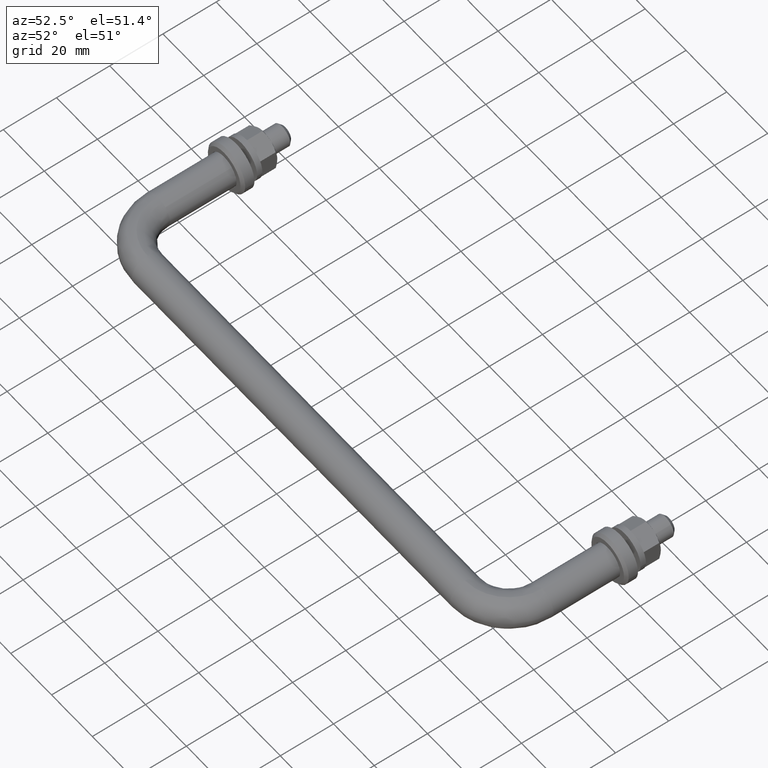
[diagram: clean part render]
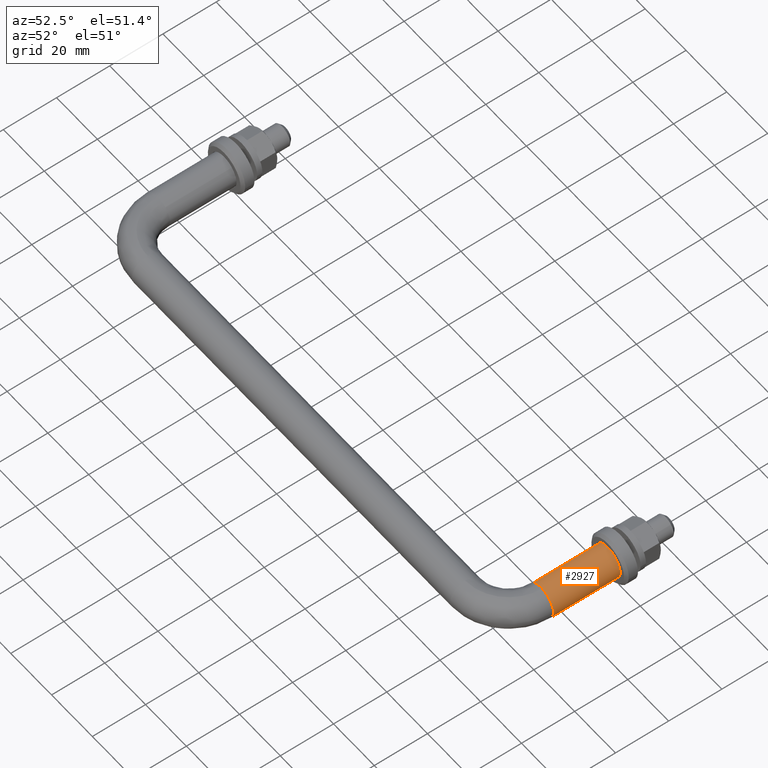
[diagram: same view with one face highlighted and labeled with its STEP entity id]
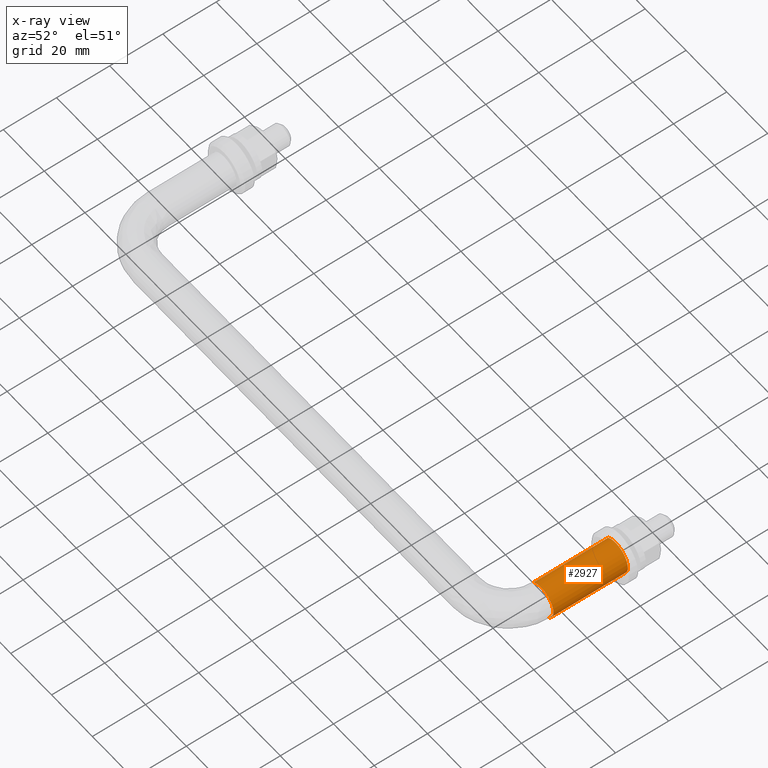
[diagram: x-ray of the same camera — body ghosted, the highlighted face saturated]
A machine part, auxiliary view. The second image highlights one B-rep face of the part: STEP entity #2927.
The next image is the same camera in x-ray: the body ghosted, the highlighted face saturated — about 0% of this face is hidden behind the body in this view.
In plain terms, the highlighted face is a freeform B-spline surface patch.
Its self-contained STEP definition (entity closure, byte-faithful):
#2736=CARTESIAN_POINT('',(191.735087819828210,-27.999986919513621,-4.695648941111090));
#2737=VERTEX_POINT('',#2736);
#2768=CARTESIAN_POINT('',(184.264912180171190,-28.0,4.695648941111987));
#2769=VERTEX_POINT('',#2768);
#2783=CARTESIAN_POINT('',(184.264912180171190,2.452205E-014,4.695648941112008));
#2784=VERTEX_POINT('',#2783);
#2785=CARTESIAN_POINT('',(184.264912180171190,-28.0,4.695648941111987));
#2786=CARTESIAN_POINT('',(184.264912180171190,2.452205E-014,4.695648941112008));
#2787=QUASI_UNIFORM_CURVE('',1,(#2785,#2786),.UNSPECIFIED.,.F.,.U.);
#2788=EDGE_CURVE('',#2769,#2784,#2787,.T.);
#2805=CARTESIAN_POINT('',(191.735087819828810,2.485512E-014,-4.695648941112017));
#2806=VERTEX_POINT('',#2805);
#2822=CARTESIAN_POINT('',(191.735087819828210,-27.999986919513621,-4.695648941111090));
#2823=CARTESIAN_POINT('',(191.735087819828810,2.485512E-014,-4.695648941112017));
#2824=QUASI_UNIFORM_CURVE('',1,(#2822,#2823),.UNSPECIFIED.,.F.,.U.);
#2825=EDGE_CURVE('',#2737,#2806,#2824,.T.);
#2830=CARTESIAN_POINT('',(184.264912180174290,-28.700000001172810,4.695648941114484));
#2831=CARTESIAN_POINT('',(188.960561121288800,-28.700000001172814,8.430736760940201));
#2832=CARTESIAN_POINT('',(192.695648941114510,-28.700000001172810,3.735087819825715));
#2833=CARTESIAN_POINT('',(196.430736760940250,-28.700000001172814,-0.960561121288768));
#2834=CARTESIAN_POINT('',(191.735087819825710,-28.700000001172810,-4.695648941114484));
#2835=CARTESIAN_POINT('',(184.264912180174290,0.717500000029346,4.695648941114484));
#2836=CARTESIAN_POINT('',(188.960561121288800,0.717500000029346,8.430736760940201));
#2837=CARTESIAN_POINT('',(192.695648941114510,0.717500000029347,3.735087819825715));
#2838=CARTESIAN_POINT('',(196.430736760940250,0.717500000029347,-0.960561121288768));
#2839=CARTESIAN_POINT('',(191.735087819825710,0.717500000029347,-4.695648941114484));
#2847=(BOUNDED_SURFACE()B_SPLINE_SURFACE(2,1,((#2830,#2835),(#2831,#2836),(#2832,#2837),(#2833,#2838),(#2834,#2839)),.UNSPECIFIED.,.F.,.F.,.U.)B_SPLINE_SURFACE_WITH_KNOTS((3,2,3),(2,2),(0.0,9.941125496954339,19.882250993908681),(0.0,29.417500001202161),.UNSPECIFIED.)GEOMETRIC_REPRESENTATION_ITEM()RATIONAL_B_SPLINE_SURFACE(((1.0,1.0),(0.707106781186548,0.707106781186548),(1.0,1.0),(0.707106781186548,0.707106781186548),(1.0,1.0)))REPRESENTATION_ITEM('')SURFACE());
#2848=CARTESIAN_POINT('',(194.0,-28.0,0.0));
#2849=VERTEX_POINT('',#2848);
#2850=CARTESIAN_POINT('',(191.735087819828180,-27.999986919513624,-4.695648941111090));
#2851=CARTESIAN_POINT('',(193.999999999999970,-27.999994583691187,-2.894056444900413));
#2852=CARTESIAN_POINT('',(194.0,-28.0,0.0));
#2860=(BOUNDED_CURVE()B_SPLINE_CURVE(2,(#2850,#2851,#2852),.UNSPECIFIED.,.F.,.U.)B_SPLINE_CURVE_WITH_KNOTS((3,3),(0.357863877391600,0.500000000000000),.UNSPECIFIED.)CURVE()GEOMETRIC_REPRESENTATION_ITEM()RATIONAL_B_SPLINE_CURVE((0.856305618644021,0.833477174158249,1.0))REPRESENTATION_ITEM(''));
#2861=EDGE_CURVE('',#2737,#2849,#2860,.T.);
#2862=ORIENTED_EDGE('',*,*,#2861,.F.);
#2863=ORIENTED_EDGE('',*,*,#2825,.T.);
#2864=CARTESIAN_POINT('',(194.0,2.428613E-014,0.0));
#2865=VERTEX_POINT('',#2864);
#2866=CARTESIAN_POINT('',(191.735087819828750,2.485512E-014,-4.695648941112017));
#2867=CARTESIAN_POINT('',(194.000000000000030,2.428613E-014,-2.894056444900539));
#2868=CARTESIAN_POINT('',(194.0,2.428613E-014,0.0));
#2876=(BOUNDED_CURVE()B_SPLINE_CURVE(2,(#2866,#2867,#2868),.UNSPECIFIED.,.F.,.U.)B_SPLINE_CURVE_WITH_KNOTS((3,3),(0.357863877391645,0.500000000000000),.UNSPECIFIED.)CURVE()GEOMETRIC_REPRESENTATION_ITEM()RATIONAL_B_SPLINE_CURVE((0.856305618644006,0.833477174158302,1.0))REPRESENTATION_ITEM(''));
#2877=EDGE_CURVE('',#2806,#2865,#2876,.T.);
#2878=ORIENTED_EDGE('',*,*,#2877,.T.);
#2879=CARTESIAN_POINT('',(194.0,2.428613E-014,0.0));
#2880=CARTESIAN_POINT('',(193.999999999999940,2.428613E-014,6.0));
#2881=CARTESIAN_POINT('',(188.0,2.428613E-014,6.0));
#2882=CARTESIAN_POINT('',(185.904706199466230,2.428613E-014,6.0));
#2883=CARTESIAN_POINT('',(184.264912180171190,2.452205E-014,4.695648941112008));
#2891=(BOUNDED_CURVE()B_SPLINE_CURVE(2,(#2879,#2880,#2881,#2882,#2883),.UNSPECIFIED.,.F.,.U.)B_SPLINE_CURVE_WITH_KNOTS((3,2,3),(0.500000000000000,0.750000000000000,0.857863877391646),.UNSPECIFIED.)CURVE()GEOMETRIC_REPRESENTATION_ITEM()RATIONAL_B_SPLINE_CURVE((1.0,0.707106781186548,1.0,0.873629607028244,0.856305618644006))REPRESENTATION_ITEM(''));
#2892=EDGE_CURVE('',#2865,#2784,#2891,.T.);
#2893=ORIENTED_EDGE('',*,*,#2892,.T.);
#2894=ORIENTED_EDGE('',*,*,#2788,.F.);
#2895=CARTESIAN_POINT('',(188.418399515030300,-28.000000001144201,5.985394042652700));
#2896=VERTEX_POINT('',#2895);
#2897=CARTESIAN_POINT('',(188.418399515030250,-28.000000001144205,5.985394042652700));
#2898=CARTESIAN_POINT('',(188.209454700846320,-27.999999999999993,6.0));
#2899=CARTESIAN_POINT('',(188.0,-28.0,6.0));
#2900=CARTESIAN_POINT('',(185.904706199466230,-28.000000000000004,6.000000000000001));
#2901=CARTESIAN_POINT('',(184.264912180171140,-28.0,4.695648941111987));
#2909=(BOUNDED_CURVE()B_SPLINE_CURVE(2,(#2897,#2898,#2899,#2900,#2901),.UNSPECIFIED.,.F.,.U.)B_SPLINE_CURVE_WITH_KNOTS((3,2,3),(0.737833686214604,0.750000000000000,0.857863877391649),.UNSPECIFIED.)CURVE()GEOMETRIC_REPRESENTATION_ITEM()RATIONAL_B_SPLINE_CURVE((0.972879875709116,0.985746276777203,1.0,0.873629607028242,0.856305618644005))REPRESENTATION_ITEM(''));
#2910=EDGE_CURVE('',#2896,#2769,#2909,.T.);
#2911=ORIENTED_EDGE('',*,*,#2910,.F.);
#2912=CARTESIAN_POINT('',(194.0,-28.0,0.0));
#2913=CARTESIAN_POINT('',(193.999999999999940,-28.000000000000007,5.595221073146222));
#2914=CARTESIAN_POINT('',(188.418399515030250,-28.000000001144205,5.985394042652700));
#2922=(BOUNDED_CURVE()B_SPLINE_CURVE(2,(#2912,#2913,#2914),.UNSPECIFIED.,.F.,.U.)B_SPLINE_CURVE_WITH_KNOTS((3,3),(0.500000000000000,0.737833686214604),.UNSPECIFIED.)CURVE()GEOMETRIC_REPRESENTATION_ITEM()RATIONAL_B_SPLINE_CURVE((1.0,0.721360504409345,0.972879875709116))REPRESENTATION_ITEM(''));
#2923=EDGE_CURVE('',#2849,#2896,#2922,.T.);
#2924=ORIENTED_EDGE('',*,*,#2923,.F.);
#2925=EDGE_LOOP('',(#2862,#2863,#2878,#2893,#2894,#2911,#2924));
#2926=FACE_OUTER_BOUND('',#2925,.T.);
#2927=ADVANCED_FACE('',(#2926),#2847,.T.);